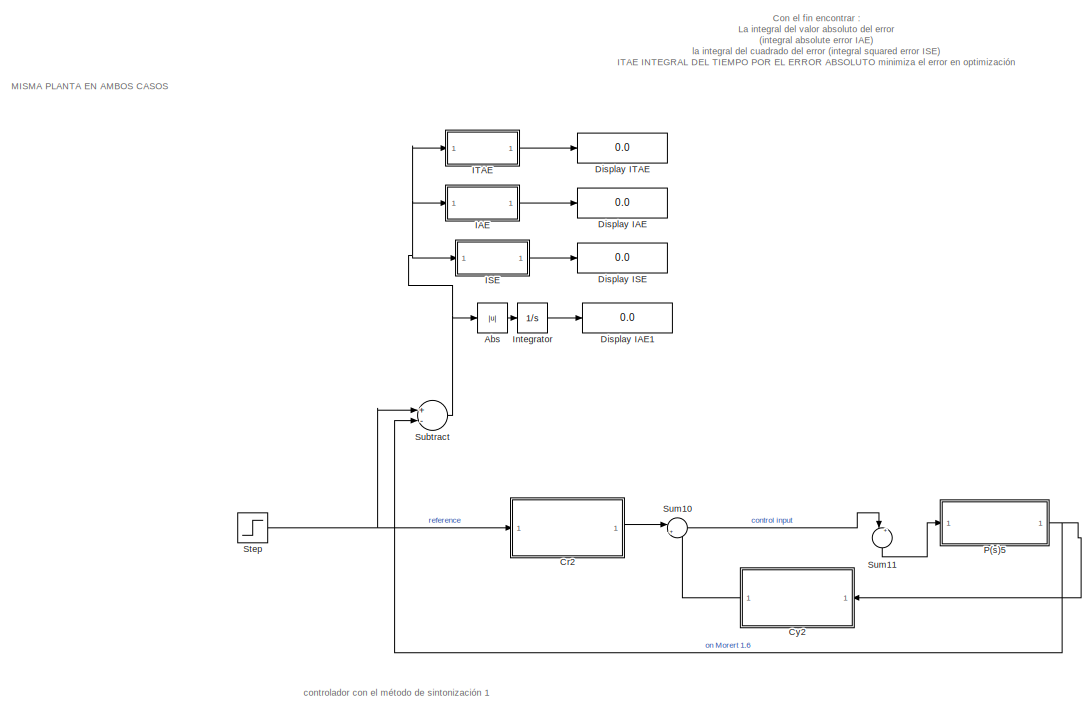
[diagram: root canvas - part 1/2, left side, full height]
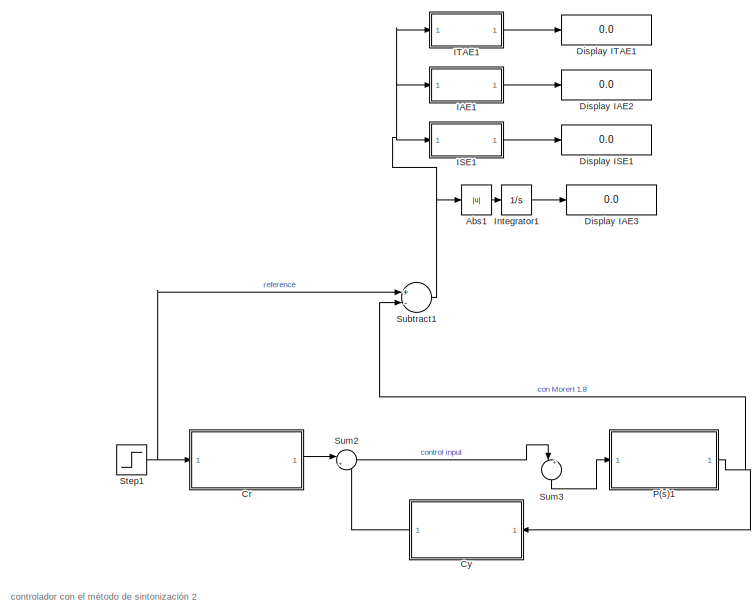
[diagram: root canvas - part 2/2, right side, full height]
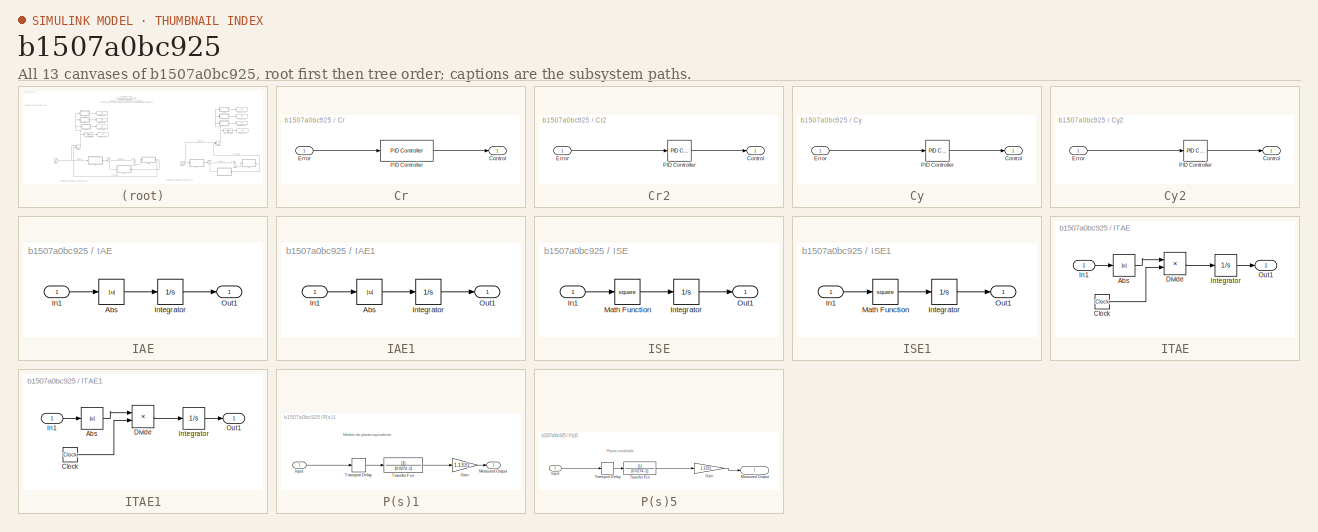
[diagram: thumbnail index - all 13 canvases of the model, root first then tree order]
MODEL slx_b1507a0bc925
KIND model
CONFIG AbsTol = auto
CONFIG EnableMultiTasking = on
CONFIG FixedStep = auto
CONFIG MaxStep = auto
CONFIG MinStep = auto
CONFIG RelTol = 1e-3
CONFIG SampleTimeConstraint = Unconstrained
CONFIG Solver = VariableStepAuto
CONFIG SolverName = VariableStepAuto
CONFIG StartTime = 0.0
CONFIG StopTime = 10.1
BLOCK [Abs] Abs
  SaturateOnIntegerOverflow = off
BLOCK [Abs] Abs1
  SaturateOnIntegerOverflow = off
BLOCK [SubSystem] Cr
  Ports = [1, 1]
  RequestExecContextInheritance = off
BLOCK [Outport] Cr/Control
  IconDisplay = Port number
BLOCK [Inport] Cr/Error
  IconDisplay = Port number
BLOCK [Reference] Cr/PID Controller  REF=simulink/Continuous/PID Controller
  Ports = [1, 1]
  SourceBlock = simulink/Continuous/PID Controller
  SourceProductBaseCode = SL
  SourceProductName = Simulink
  SourceType = PID 1dof
BLOCK [SubSystem] Cr2
  Ports = [1, 1]
  RequestExecContextInheritance = off
BLOCK [Outport] Cr2/Control
  IconDisplay = Port number
BLOCK [Inport] Cr2/Error
  IconDisplay = Port number
BLOCK [Reference] Cr2/PID Controller  REF=simulink/Continuous/PID Controller
  Ports = [1, 1]
  SourceBlock = simulink/Continuous/PID Controller
  SourceProductBaseCode = SL
  SourceProductName = Simulink
  SourceType = PID 1dof
BLOCK [SubSystem] Cy
  Ports = [1, 1]
  RequestExecContextInheritance = off
BLOCK [Outport] Cy/Control
  IconDisplay = Port number
BLOCK [Inport] Cy/Error
  IconDisplay = Port number
BLOCK [Reference] Cy/PID Controller  REF=simulink/Continuous/PID Controller
  Ports = [1, 1]
  SourceBlock = simulink/Continuous/PID Controller
  SourceProductBaseCode = SL
  SourceProductName = Simulink
  SourceType = PID 1dof
BLOCK [SubSystem] Cy2
  Ports = [1, 1]
  RequestExecContextInheritance = off
BLOCK [Outport] Cy2/Control
  IconDisplay = Port number
BLOCK [Inport] Cy2/Error
  IconDisplay = Port number
BLOCK [Reference] Cy2/PID Controller  REF=simulink/Continuous/PID Controller
  Ports = [1, 1]
  SourceBlock = simulink/Continuous/PID Controller
  SourceProductBaseCode = SL
  SourceProductName = Simulink
  SourceType = PID 1dof
BLOCK [Display] Display IAE
  Decimation = 1
  Ports = [1]
BLOCK [Display] Display IAE1
  Decimation = 1
  Ports = [1]
BLOCK [Display] Display IAE2
  Decimation = 1
  Ports = [1]
BLOCK [Display] Display IAE3
  Decimation = 1
  Ports = [1]
BLOCK [Display] Display ISE
  Decimation = 1
  Ports = [1]
BLOCK [Display] Display ISE1
  Decimation = 1
  Ports = [1]
BLOCK [Display] Display ITAE
  Decimation = 1
  Ports = [1]
BLOCK [Display] Display ITAE1
  Decimation = 1
  Ports = [1]
BLOCK [SubSystem] IAE
  Ports = [1, 1]
  RequestExecContextInheritance = off
BLOCK [Abs] IAE/Abs
  SaturateOnIntegerOverflow = off
BLOCK [Inport] IAE/In1
  IconDisplay = Port number
BLOCK [Integrator] IAE/Integrator
  Ports = [1, 1]
BLOCK [Outport] IAE/Out1
  IconDisplay = Port number
BLOCK [SubSystem] IAE1
  Ports = [1, 1]
  RequestExecContextInheritance = off
BLOCK [Abs] IAE1/Abs
  SaturateOnIntegerOverflow = off
BLOCK [Inport] IAE1/In1
  IconDisplay = Port number
BLOCK [Integrator] IAE1/Integrator
  Ports = [1, 1]
BLOCK [Outport] IAE1/Out1
  IconDisplay = Port number
BLOCK [SubSystem] ISE
  Ports = [1, 1]
  RequestExecContextInheritance = off
BLOCK [Inport] ISE/In1
  IconDisplay = Port number
BLOCK [Integrator] ISE/Integrator
  Ports = [1, 1]
BLOCK [Math] ISE/Math Function
  Operator = square
  Ports = [1, 1]
BLOCK [Outport] ISE/Out1
  IconDisplay = Port number
BLOCK [SubSystem] ISE1
  Ports = [1, 1]
  RequestExecContextInheritance = off
BLOCK [Inport] ISE1/In1
  IconDisplay = Port number
BLOCK [Integrator] ISE1/Integrator
  Ports = [1, 1]
BLOCK [Math] ISE1/Math Function
  Operator = square
  Ports = [1, 1]
BLOCK [Outport] ISE1/Out1
  IconDisplay = Port number
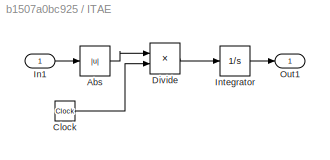
BLOCK [SubSystem] ITAE
  Ports = [1, 1]
  RequestExecContextInheritance = off
BLOCK [Abs] ITAE/Abs
  SaturateOnIntegerOverflow = off
BLOCK [Clock] ITAE/Clock
BLOCK [Product] ITAE/Divide
  InputSameDT = off
  Inputs = **
  OutDataTypeStr = Inherit: Inherit via internal rule
  Ports = [2, 1]
  RndMeth = Floor
  SaturateOnIntegerOverflow = off
BLOCK [Inport] ITAE/In1
  IconDisplay = Port number
BLOCK [Integrator] ITAE/Integrator
  Ports = [1, 1]
BLOCK [Outport] ITAE/Out1
  IconDisplay = Port number
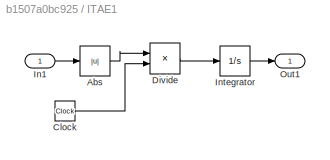
BLOCK [SubSystem] ITAE1
  Ports = [1, 1]
  RequestExecContextInheritance = off
BLOCK [Abs] ITAE1/Abs
  SaturateOnIntegerOverflow = off
BLOCK [Clock] ITAE1/Clock
BLOCK [Product] ITAE1/Divide
  InputSameDT = off
  Inputs = **
  OutDataTypeStr = Inherit: Inherit via internal rule
  Ports = [2, 1]
  RndMeth = Floor
  SaturateOnIntegerOverflow = off
BLOCK [Inport] ITAE1/In1
  IconDisplay = Port number
BLOCK [Integrator] ITAE1/Integrator
  Ports = [1, 1]
BLOCK [Outport] ITAE1/Out1
  IconDisplay = Port number
BLOCK [Integrator] Integrator
  Ports = [1, 1]
BLOCK [Integrator] Integrator1
  Ports = [1, 1]
BLOCK [SubSystem] P(s)1
  Ports = [1, 1]
  RequestExecContextInheritance = off
BLOCK [Gain] P(s)1/Gain
  Gain = 1.1331
  OutDataTypeStr = Inherit: Inherit via internal rule
  ParamDataTypeStr = Inherit: Inherit via internal rule
  SaturateOnIntegerOverflow = off
BLOCK [Inport] P(s)1/Input
  IconDisplay = Port number
BLOCK [Outport] P(s)1/Measured Output
  IconDisplay = Port number
BLOCK [TransferFcn] P(s)1/Transfer Fcn
  Denominator = [0.0274 -1]
BLOCK [TransportDelay] P(s)1/Transport Delay
  DelayTime = 0.020
  Ports = [1, 1]
BLOCK [SubSystem] P(s)5
  Ports = [1, 1]
  RequestExecContextInheritance = off
BLOCK [Gain] P(s)5/Gain
  Gain = 1.1331
  OutDataTypeStr = Inherit: Inherit via internal rule
  ParamDataTypeStr = Inherit: Inherit via internal rule
  SaturateOnIntegerOverflow = off
BLOCK [Inport] P(s)5/Input
  IconDisplay = Port number
BLOCK [Outport] P(s)5/Measured Output
  IconDisplay = Port number
BLOCK [TransferFcn] P(s)5/Transfer Fcn
  Denominator = [0.0274 -1]
BLOCK [TransportDelay] P(s)5/Transport Delay
  DelayTime = 0.020
  Ports = [1, 1]
BLOCK [Step] Step
  SampleTime = 0
  Time = 10
BLOCK [Step] Step1
  SampleTime = 0
  Time = 10
BLOCK [Sum] Subtract
  InputSameDT = off
  Inputs = +-
  OutDataTypeStr = Inherit: Inherit via internal rule
  Ports = [2, 1]
  SaturateOnIntegerOverflow = off
BLOCK [Sum] Subtract1
  InputSameDT = off
  Inputs = +-
  OutDataTypeStr = Inherit: Inherit via internal rule
  Ports = [2, 1]
  SaturateOnIntegerOverflow = off
BLOCK [Sum] Sum10
  IconShape = round
  InputSameDT = off
  Inputs = |+-
  OutDataTypeStr = Inherit: Inherit via internal rule
  Ports = [2, 1]
  SaturateOnIntegerOverflow = off
BLOCK [Sum] Sum11
  IconShape = round
  InputSameDT = off
  Inputs = |++
  OutDataTypeStr = Inherit: Inherit via internal rule
  Ports = [2, 1]
  SaturateOnIntegerOverflow = off
BLOCK [Sum] Sum2
  IconShape = round
  InputSameDT = off
  Inputs = |+-
  OutDataTypeStr = Inherit: Inherit via internal rule
  Ports = [2, 1]
  SaturateOnIntegerOverflow = off
BLOCK [Sum] Sum3
  IconShape = round
  InputSameDT = off
  Inputs = |++
  OutDataTypeStr = Inherit: Inherit via internal rule
  Ports = [2, 1]
  SaturateOnIntegerOverflow = off
ANNOTATION (root): MISMA PLANTA EN AMBOS CASOS
ANNOTATION (root): controlador con el método de sintonización 1
ANNOTATION (root): controlador con el método de sintonización 2
ANNOTATION (root): Con el fin encontrar : La integral del valor absoluto del error ( integral absolute error IAE) la integral del cuadrado del error ( integral squared error ISE) ITAE INTEGRAL DEL TIEMPO POR EL ERROR ABSOLUTO minimiza el error en optimización
ANNOTATION P(s)1: Modelo de planta equivalente
ANNOTATION P(s)5: Planta modelada
LINE Abs1:1 -> Integrator1:1
LINE Abs:1 -> Integrator:1
LINE Cr/Error:1 -> Cr/PID Controller:1
LINE Cr/PID Controller:1 -> Cr/Control:1
LINE Cr2/Error:1 -> Cr2/PID Controller:1
LINE Cr2/PID Controller:1 -> Cr2/Control:1
LINE Cr2:1 -> Sum10:1
LINE Cr:1 -> Sum2:1
LINE Cy/Error:1 -> Cy/PID Controller:1
LINE Cy/PID Controller:1 -> Cy/Control:1
LINE Cy2/Error:1 -> Cy2/PID Controller:1
LINE Cy2/PID Controller:1 -> Cy2/Control:1
LINE Cy2:1 -> Sum10:2
LINE Cy:1 -> Sum2:2
LINE IAE/Abs:1 -> IAE/Integrator:1
LINE IAE/In1:1 -> IAE/Abs:1
LINE IAE/Integrator:1 -> IAE/Out1:1
LINE IAE1/Abs:1 -> IAE1/Integrator:1
LINE IAE1/In1:1 -> IAE1/Abs:1
LINE IAE1/Integrator:1 -> IAE1/Out1:1
LINE IAE1:1 -> Display IAE2:1
LINE IAE:1 -> Display IAE:1
LINE ISE/In1:1 -> ISE/Math Function:1
LINE ISE/Integrator:1 -> ISE/Out1:1
LINE ISE/Math Function:1 -> ISE/Integrator:1
LINE ISE1/In1:1 -> ISE1/Math Function:1
LINE ISE1/Integrator:1 -> ISE1/Out1:1
LINE ISE1/Math Function:1 -> ISE1/Integrator:1
LINE ISE1:1 -> Display ISE1:1
LINE ISE:1 -> Display ISE:1
LINE ITAE/Abs:1 -> ITAE/Divide:1
LINE ITAE/Clock:1 -> ITAE/Divide:2
LINE ITAE/Divide:1 -> ITAE/Integrator:1
LINE ITAE/In1:1 -> ITAE/Abs:1
LINE ITAE/Integrator:1 -> ITAE/Out1:1
LINE ITAE1/Abs:1 -> ITAE1/Divide:1
LINE ITAE1/Clock:1 -> ITAE1/Divide:2
LINE ITAE1/Divide:1 -> ITAE1/Integrator:1
LINE ITAE1/In1:1 -> ITAE1/Abs:1
LINE ITAE1/Integrator:1 -> ITAE1/Out1:1
LINE ITAE1:1 -> Display ITAE1:1
LINE ITAE:1 -> Display ITAE:1
LINE Integrator1:1 -> Display IAE3:1
LINE Integrator:1 -> Display IAE1:1
LINE P(s)1/Gain:1 -> P(s)1/Measured Output:1
LINE P(s)1/Input:1 -> P(s)1/Transport Delay:1
LINE P(s)1/Transfer Fcn:1 -> P(s)1/Gain:1
LINE P(s)1/Transport Delay:1 -> P(s)1/Transfer Fcn:1
NET P(s)1:1 -> Cy:1, Subtract1:2
LINE P(s)5/Gain:1 -> P(s)5/Measured Output:1
LINE P(s)5/Input:1 -> P(s)5/Transport Delay:1
LINE P(s)5/Transfer Fcn:1 -> P(s)5/Gain:1
LINE P(s)5/Transport Delay:1 -> P(s)5/Transfer Fcn:1
NET P(s)5:1 -> Cy2:1, Subtract:2
NET Step1:1 -> Cr:1, Subtract1:1
NET Step:1 -> Cr2:1, Subtract:1
NET Subtract1:1 -> Abs1:1, IAE1:1, ISE1:1, ITAE1:1
NET Subtract:1 -> Abs:1, IAE:1, ISE:1, ITAE:1
LINE Sum10:1 -> Sum11:1
LINE Sum11:1 -> P(s)5:1
LINE Sum2:1 -> Sum3:1
LINE Sum3:1 -> P(s)1:1
note: NET lines group one-source signal fan-out (src -> all destinations, sorted); 1:1 wires keep LINE
